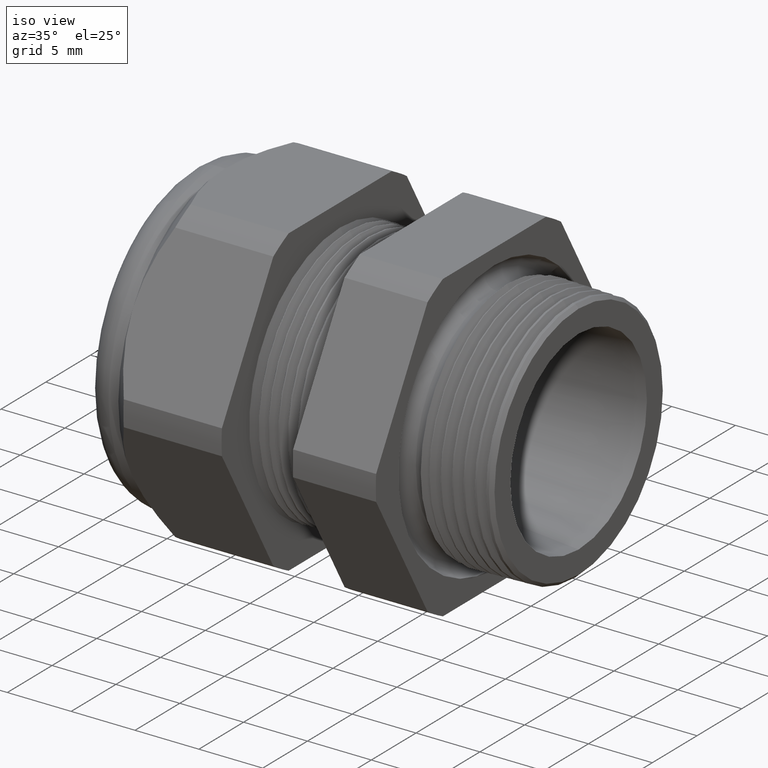
[diagram: clean part render]
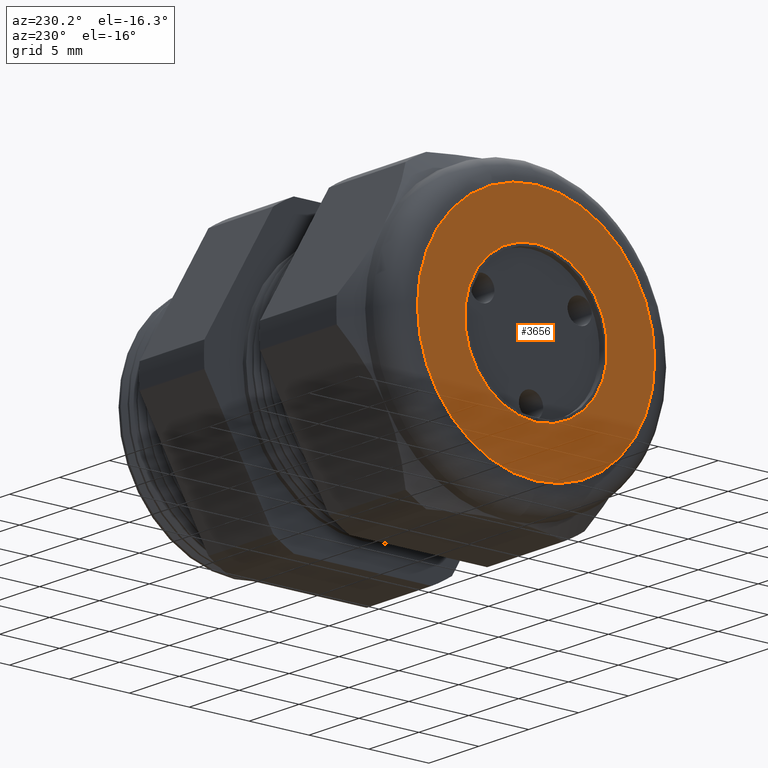
[diagram: tour spotlight — one face highlighted and labeled with its STEP entity id]
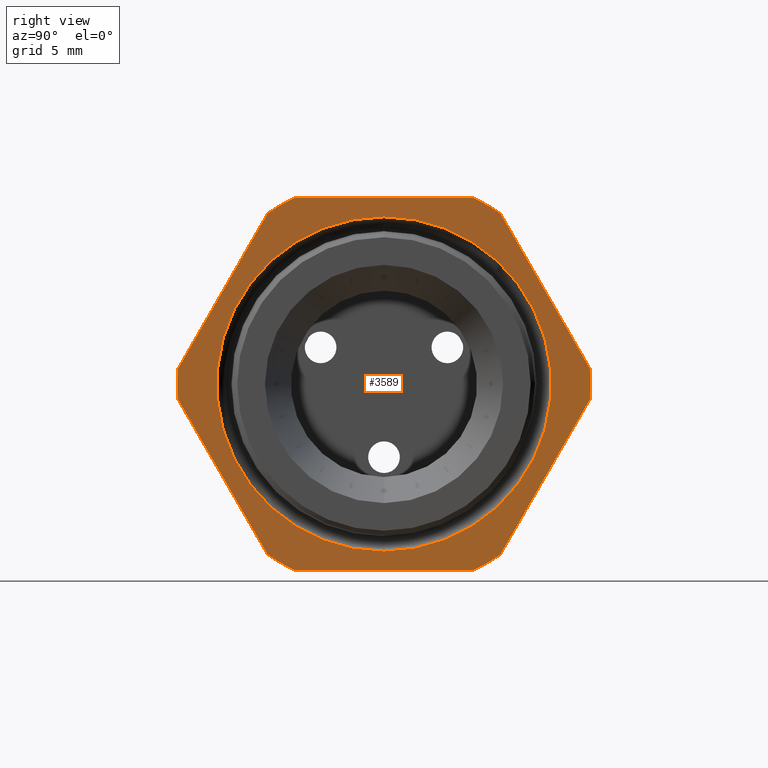
[diagram: tour spotlight — one face highlighted and labeled with its STEP entity id]
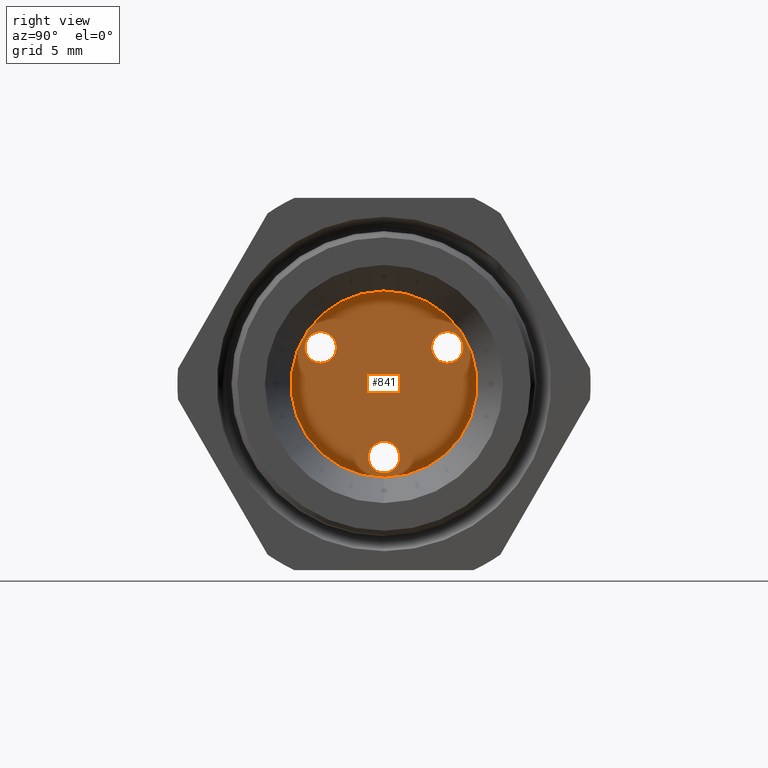
[diagram: tour spotlight — one face highlighted and labeled with its STEP entity id]
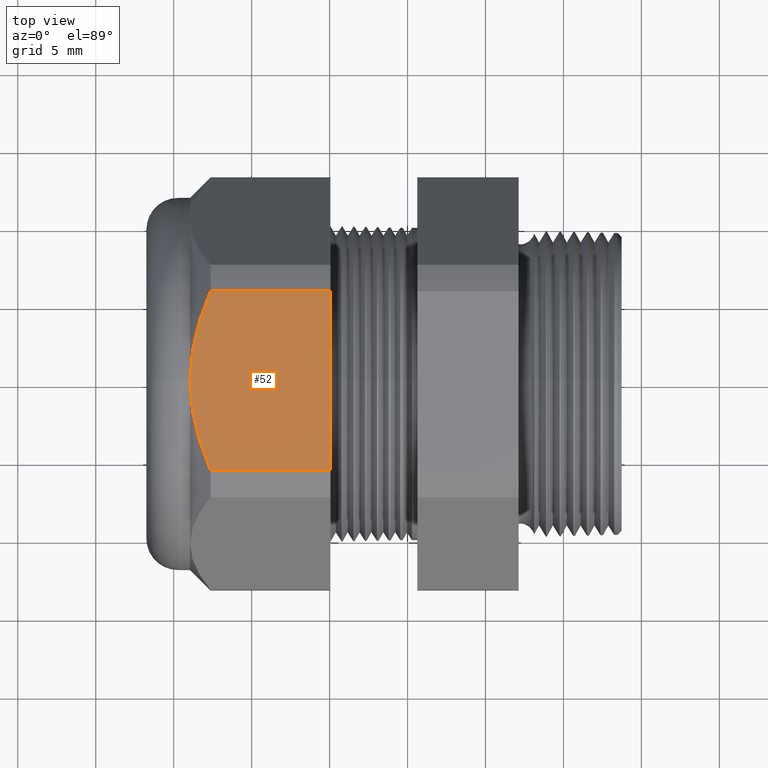
[diagram: tour spotlight — one face highlighted and labeled with its STEP entity id]
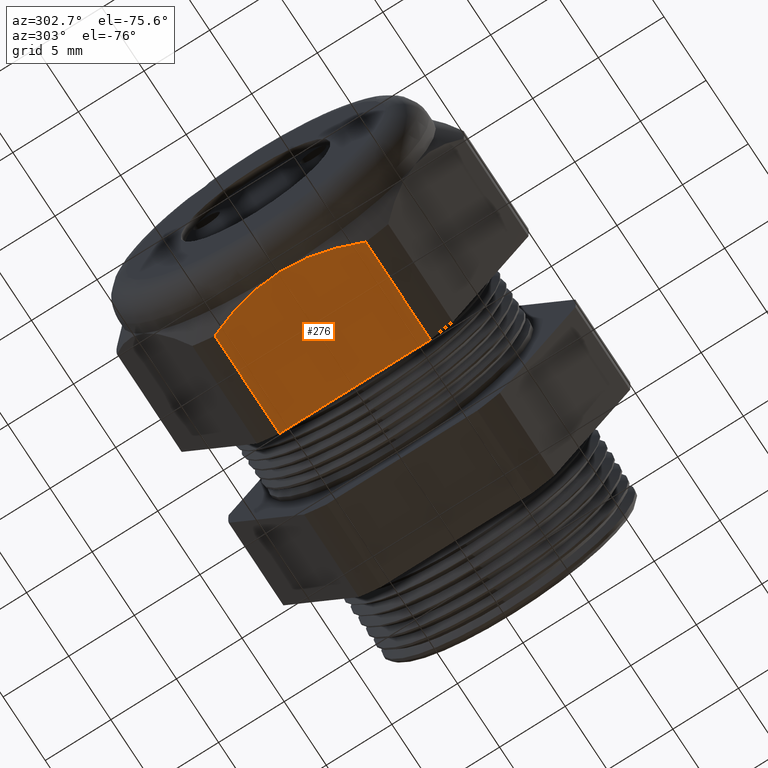
[diagram: tour spotlight — one face highlighted and labeled with its STEP entity id]
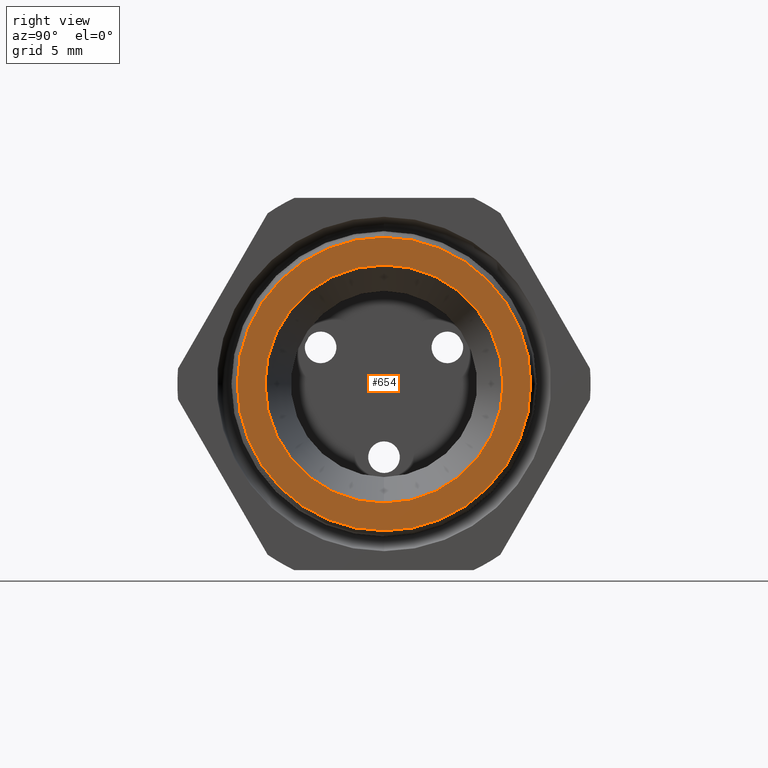
[diagram: tour spotlight — one face highlighted and labeled with its STEP entity id]
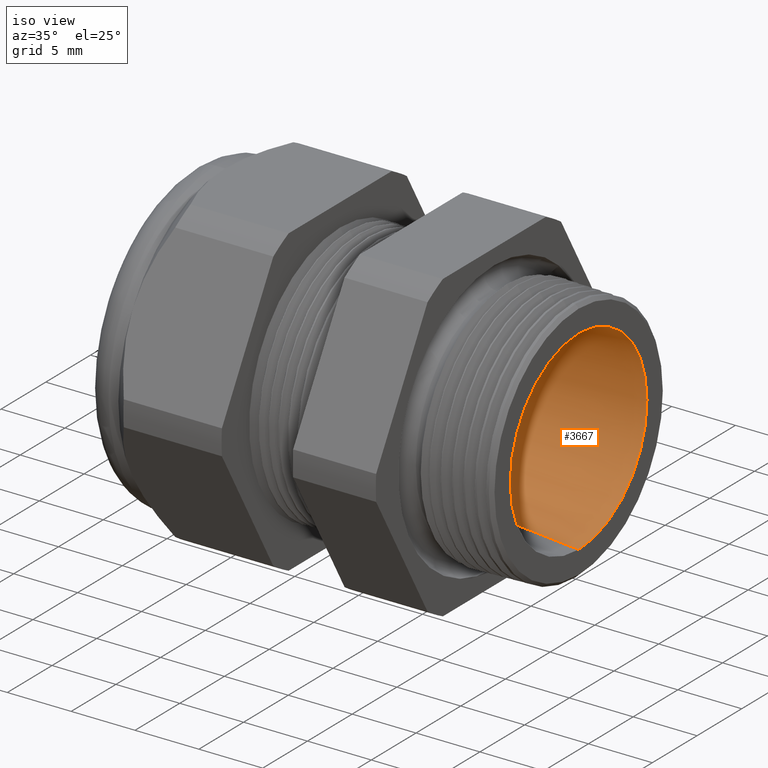
[diagram: tour spotlight — one face highlighted and labeled with its STEP entity id]
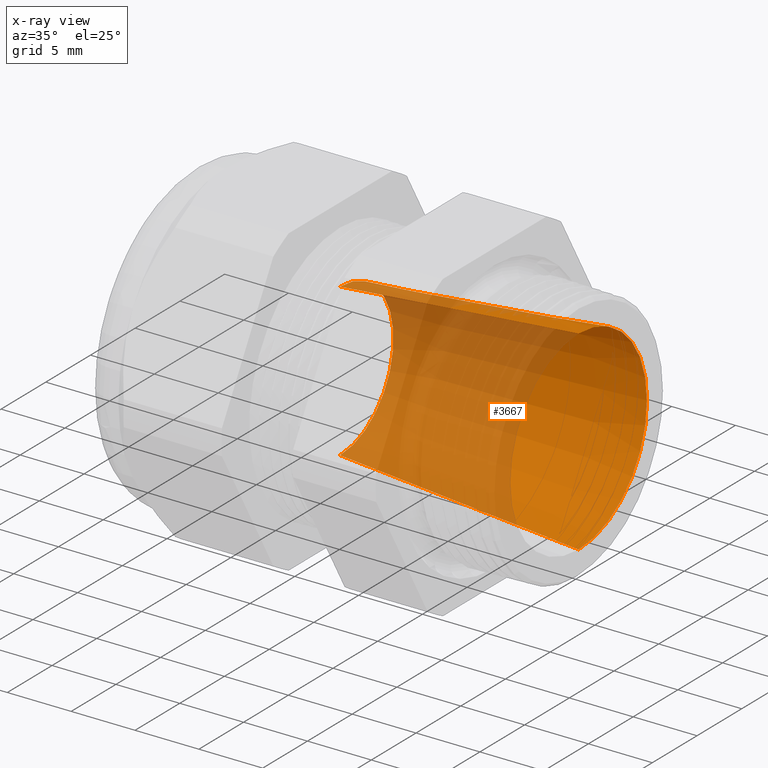
[diagram: x-ray of the same camera — body ghosted, this tour face saturated]
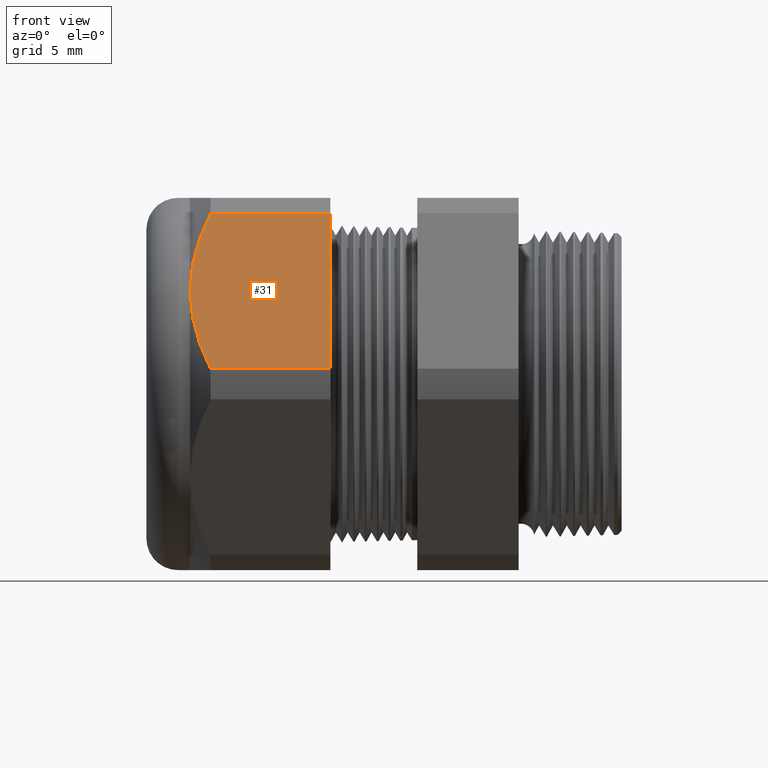
[diagram: tour spotlight — one face highlighted and labeled with its STEP entity id]
A machine part: a face-by-face anatomy tour. The part has 140 B-rep faces; the first image is the clean iso view, then the 8 largest visible faces are spotlighted one at a time (largest first), each with its STEP entity span.

Face 1 — auxiliary view, entity #3656. In plain terms, the highlighted planar face has unit normal (-1, 0, 0).
Definition (entity closure, byte-faithful):
#277 = ORIENTED_EDGE ( 'NONE', *, *, #948, .T. ) ;
#631 = EDGE_CURVE ( 'NONE', #955, #949, #2144, .T. ) ;
#632 = ORIENTED_EDGE ( 'NONE', *, *, #631, .T. ) ;
#633 = EDGE_LOOP ( 'NONE', ( #632, #277 ) ) ;
#640 = EDGE_CURVE ( 'NONE', #799, #874, #2182, .T. ) ;
#641 = ORIENTED_EDGE ( 'NONE', *, *, #640, .T. ) ;
#799 = VERTEX_POINT ( 'NONE', #2495 ) ;
#868 = EDGE_CURVE ( 'NONE', #874, #799, #2605, .T. ) ;
#874 = VERTEX_POINT ( 'NONE', #2663 ) ;
#948 = EDGE_CURVE ( 'NONE', #949, #955, #2786, .T. ) ;
#949 = VERTEX_POINT ( 'NONE', #2777 ) ;
#955 = VERTEX_POINT ( 'NONE', #2767 ) ;
#2130 = CARTESIAN_POINT ( 'NONE',  ( -1.249999999999999800, 0.0000000000000000000, 0.0000000000000000000 ) ) ;
#2140 = DIRECTION ( 'NONE',  ( 0.0000000000000000000, 0.0000000000000000000, -1.000000000000000000 ) ) ;
#2141 = DIRECTION ( 'NONE',  ( 1.000000000000000000, 0.0000000000000000000, 0.0000000000000000000 ) ) ;
#2142 = CARTESIAN_POINT ( 'NONE',  ( -1.249999999999999800, 0.0000000000000000000, 0.0000000000000000000 ) ) ;
#2143 = AXIS2_PLACEMENT_3D ( 'NONE', #2142, #2141, #2140 ) ;
#2144 = CIRCLE ( 'NONE', #2143, 0.2349999999999999600 ) ;
#2179 = DIRECTION ( 'NONE',  ( 0.0000000000000000000, 0.0000000000000000000, 1.000000000000000000 ) ) ;
#2180 = DIRECTION ( 'NONE',  ( -1.000000000000000000, 0.0000000000000000000, 0.0000000000000000000 ) ) ;
#2181 = AXIS2_PLACEMENT_3D ( 'NONE', #2130, #2180, #2179 ) ;
#2182 = CIRCLE ( 'NONE', #2181, 0.3899999999999999600 ) ;
#2495 = CARTESIAN_POINT ( 'NONE',  ( -1.249999999999999800, 5.265981236333617600E-017, -0.3899999999999999600 ) ) ;
#2604 = AXIS2_PLACEMENT_3D ( 'NONE', #2667, #2666, #2665 ) ;
#2605 = CIRCLE ( 'NONE', #2604, 0.3899999999999999600 ) ;
#2663 = CARTESIAN_POINT ( 'NONE',  ( -1.249999999999999800, 0.0000000000000000000, 0.3899999999999999600 ) ) ;
#2665 = DIRECTION ( 'NONE',  ( 0.0000000000000000000, 0.0000000000000000000, 1.000000000000000000 ) ) ;
#2666 = DIRECTION ( 'NONE',  ( -1.000000000000000000, 0.0000000000000000000, 0.0000000000000000000 ) ) ;
#2667 = CARTESIAN_POINT ( 'NONE',  ( -1.249999999999999800, 0.0000000000000000000, 0.0000000000000000000 ) ) ;
#2767 = CARTESIAN_POINT ( 'NONE',  ( -1.249999999999999800, 0.0000000000000000000, -0.2349999999999999600 ) ) ;
#2777 = CARTESIAN_POINT ( 'NONE',  ( -1.249999999999999800, 2.877919977996279200E-017, 0.2349999999999999600 ) ) ;
#2778 = DIRECTION ( 'NONE',  ( 0.0000000000000000000, 0.0000000000000000000, -1.000000000000000000 ) ) ;
#2779 = DIRECTION ( 'NONE',  ( 1.000000000000000000, 0.0000000000000000000, 0.0000000000000000000 ) ) ;
#2780 = CARTESIAN_POINT ( 'NONE',  ( -1.249999999999999800, 0.0000000000000000000, 0.0000000000000000000 ) ) ;
#2781 = AXIS2_PLACEMENT_3D ( 'NONE', #2780, #2779, #2778 ) ;
#2786 = CIRCLE ( 'NONE', #2781, 0.2349999999999999600 ) ;
#3047 = FACE_BOUND ( 'NONE', #633, .T. ) ;
#3048 = FACE_OUTER_BOUND ( 'NONE', #3654, .T. ) ;
#3105 = DIRECTION ( 'NONE',  ( 0.0000000000000000000, 0.0000000000000000000, 1.000000000000000000 ) ) ;
#3106 = DIRECTION ( 'NONE',  ( -1.000000000000000000, 0.0000000000000000000, 0.0000000000000000000 ) ) ;
#3107 = CARTESIAN_POINT ( 'NONE',  ( -1.249999999999999800, 0.4699999999999999700, 0.0000000000000000000 ) ) ;
#3108 = AXIS2_PLACEMENT_3D ( 'NONE', #3107, #3106, #3105 ) ;
#3109 = PLANE ( 'NONE',  #3108 ) ;
#3650 = ORIENTED_EDGE ( 'NONE', *, *, #868, .T. ) ;
#3654 = EDGE_LOOP ( 'NONE', ( #3650, #641 ) ) ;
#3656 = ADVANCED_FACE ( 'NONE', ( #3048, #3047 ), #3109, .T. ) ;

Face 2 — right view, entity #3589. In plain terms, the highlighted planar face has unit normal (1, 0, 0).
Definition (entity closure, byte-faithful):
#508 = VERTEX_POINT ( 'NONE', #1918 ) ;
#567 = EDGE_CURVE ( 'NONE', #508, #568, #2026, .T. ) ;
#568 = VERTEX_POINT ( 'NONE', #2022 ) ;
#624 = VERTEX_POINT ( 'NONE', #2109 ) ;
#1918 = CARTESIAN_POINT ( 'NONE',  ( -0.3100000000000000000, 5.170353013822879300E-017, 0.4221913630462824600 ) ) ;
#2022 = CARTESIAN_POINT ( 'NONE',  ( -0.3100000000000000000, 0.0000000000000000000, -0.4221913630462824600 ) ) ;
#2023 = DIRECTION ( 'NONE',  ( 0.0000000000000000000, 0.0000000000000000000, -1.000000000000000000 ) ) ;
#2024 = DIRECTION ( 'NONE',  ( 1.000000000000000000, 0.0000000000000000000, 0.0000000000000000000 ) ) ;
#2025 = AXIS2_PLACEMENT_3D ( 'NONE', #2030, #2024, #2023 ) ;
#2026 = CIRCLE ( 'NONE', #2025, 0.4221913630462824600 ) ;
#2030 = CARTESIAN_POINT ( 'NONE',  ( -0.3100000000000000000, 0.0000000000000000000, 0.0000000000000000000 ) ) ;
#2109 = CARTESIAN_POINT ( 'NONE',  ( -0.3100000000000000000, 0.5202473208008777700, -0.03890520787129494300 ) ) ;
#2919 = AXIS2_PLACEMENT_3D ( 'NONE', #2982, #2981, #2980 ) ;
#2920 = PLANE ( 'NONE',  #2919 ) ;
#2921 = FACE_OUTER_BOUND ( 'NONE', #3586, .T. ) ;
#2922 = FACE_BOUND ( 'NONE', #3588, .T. ) ;
#2923 = DIRECTION ( 'NONE',  ( 0.0000000000000000000, 0.0000000000000000000, -1.000000000000000000 ) ) ;
#2924 = DIRECTION ( 'NONE',  ( 1.000000000000000000, 0.0000000000000000000, 0.0000000000000000000 ) ) ;
#2925 = CARTESIAN_POINT ( 'NONE',  ( -0.3100000000000000000, 0.0000000000000000000, 0.0000000000000000000 ) ) ;
#2926 = AXIS2_PLACEMENT_3D ( 'NONE', #2925, #2924, #2923 ) ;
#2927 = CIRCLE ( 'NONE', #2926, 0.4221913630462824600 ) ;
#2928 = DIRECTION ( 'NONE',  ( 0.0000000000000000000, 0.4999999999999998300, 0.8660254037844388200 ) ) ;
#2929 = VECTOR ( 'NONE', #2928, 39.37007874015748100 ) ;
#2930 = CARTESIAN_POINT ( 'NONE',  ( -0.3100000000000000000, 0.6420319397786861100, 0.1720319397786861100 ) ) ;
#2931 = LINE ( 'NONE', #2930, #2929 ) ;
#2951 = CARTESIAN_POINT ( 'NONE',  ( -0.3100000000000000000, -0.5202473208008777700, 0.03890520787129464500 ) ) ;
#2956 = DIRECTION ( 'NONE',  ( 0.0000000000000000000, 0.0000000000000000000, -1.000000000000000000 ) ) ;
#2957 = DIRECTION ( 'NONE',  ( 1.000000000000000000, 0.0000000000000000000, 0.0000000000000000000 ) ) ;
#2958 = CARTESIAN_POINT ( 'NONE',  ( -0.3100000000000000000, 0.0000000000000000000, 0.0000000000000000000 ) ) ;
#2959 = AXIS2_PLACEMENT_3D ( 'NONE', #2958, #2957, #2956 ) ;
#2960 = CIRCLE ( 'NONE', #2959, 0.5217000000000000500 ) ;
#2961 = CARTESIAN_POINT ( 'NONE',  ( -0.3100000000000000000, -0.2938165587564947100, 0.4310947921287050500 ) ) ;
#2973 = CARTESIAN_POINT ( 'NONE',  ( -0.3100000000000000000, 0.2938165587564948700, -0.4310947921287048800 ) ) ;
#2980 = DIRECTION ( 'NONE',  ( 0.0000000000000000000, 0.0000000000000000000, -1.000000000000000000 ) ) ;
#2981 = DIRECTION ( 'NONE',  ( 1.000000000000000000, 0.0000000000000000000, 0.0000000000000000000 ) ) ;
#2982 = CARTESIAN_POINT ( 'NONE',  ( -0.3100000000000000000, 0.9399999999999999500, 0.0000000000000000000 ) ) ;
#2983 = CARTESIAN_POINT ( 'NONE',  ( -0.3100000000000000000, -0.2938165587564944800, -0.4310947921287051100 ) ) ;
#2984 = CARTESIAN_POINT ( 'NONE',  ( -0.3100000000000000000, -0.2264307620443832300, -0.4699999999999999700 ) ) ;
#2985 = DIRECTION ( 'NONE',  ( 0.0000000000000000000, 0.0000000000000000000, -1.000000000000000000 ) ) ;
#2986 = DIRECTION ( 'NONE',  ( 1.000000000000000000, 0.0000000000000000000, 0.0000000000000000000 ) ) ;
#2987 = CARTESIAN_POINT ( 'NONE',  ( -0.3100000000000000000, 0.0000000000000000000, 0.0000000000000000000 ) ) ;
#2988 = AXIS2_PLACEMENT_3D ( 'NONE', #2987, #2986, #2985 ) ;
#2989 = CIRCLE ( 'NONE', #2988, 0.5217000000000000500 ) ;
#2990 = DIRECTION ( 'NONE',  ( 0.0000000000000000000, 1.000000000000000000, 0.0000000000000000000 ) ) ;
#2991 = VECTOR ( 'NONE', #2990, 39.37007874015748100 ) ;
#2992 = CARTESIAN_POINT ( 'NONE',  ( -0.3100000000000000000, 0.9399999999999999500, -0.4699999999999999700 ) ) ;
#2993 = LINE ( 'NONE', #2992, #2991 ) ;
#2994 = DIRECTION ( 'NONE',  ( 0.0000000000000000000, 0.0000000000000000000, -1.000000000000000000 ) ) ;
#2995 = DIRECTION ( 'NONE',  ( 1.000000000000000000, 0.0000000000000000000, 0.0000000000000000000 ) ) ;
#2996 = AXIS2_PLACEMENT_3D ( 'NONE', #3002, #2995, #2994 ) ;
#2997 = CIRCLE ( 'NONE', #2996, 0.5217000000000000500 ) ;
#3002 = CARTESIAN_POINT ( 'NONE',  ( -0.3100000000000000000, 0.0000000000000000000, 0.0000000000000000000 ) ) ;
#3005 = DIRECTION ( 'NONE',  ( 0.0000000000000000000, 0.0000000000000000000, -1.000000000000000000 ) ) ;
#3006 = DIRECTION ( 'NONE',  ( 1.000000000000000000, 0.0000000000000000000, 0.0000000000000000000 ) ) ;
#3007 = CARTESIAN_POINT ( 'NONE',  ( -0.3100000000000000000, 0.0000000000000000000, 0.0000000000000000000 ) ) ;
#3008 = AXIS2_PLACEMENT_3D ( 'NONE', #3007, #3006, #3005 ) ;
#3009 = CIRCLE ( 'NONE', #3008, 0.5217000000000000500 ) ;
#3010 = CARTESIAN_POINT ( 'NONE',  ( -0.3100000000000000000, -0.2264307620443835600, 0.4699999999999997500 ) ) ;
#3011 = DIRECTION ( 'NONE',  ( 0.0000000000000000000, 0.4999999999999998900, -0.8660254037844386000 ) ) ;
#3012 = VECTOR ( 'NONE', #3011, 39.37007874015748900 ) ;
#3013 = CARTESIAN_POINT ( 'NONE',  ( -0.3100000000000000000, -0.1720319397786862800, -0.6420319397786862200 ) ) ;
#3014 = LINE ( 'NONE', #3013, #3012 ) ;
#3025 = DIRECTION ( 'NONE',  ( 0.0000000000000000000, -0.4999999999999998300, -0.8660254037844388200 ) ) ;
#3026 = VECTOR ( 'NONE', #3025, 39.37007874015748100 ) ;
#3027 = CARTESIAN_POINT ( 'NONE',  ( -0.3100000000000000000, -0.1720319397786864200, 0.6420319397786858900 ) ) ;
#3028 = LINE ( 'NONE', #3027, #3026 ) ;
#3029 = CARTESIAN_POINT ( 'NONE',  ( -0.3100000000000000000, -0.5202473208008777700, -0.03890520787129508200 ) ) ;
#3030 = CARTESIAN_POINT ( 'NONE',  ( -0.3100000000000000000, 0.5202473208008776600, 0.03890520787129501300 ) ) ;
#3031 = DIRECTION ( 'NONE',  ( 0.0000000000000000000, 0.0000000000000000000, -1.000000000000000000 ) ) ;
#3032 = DIRECTION ( 'NONE',  ( 1.000000000000000000, 0.0000000000000000000, 0.0000000000000000000 ) ) ;
#3033 = CARTESIAN_POINT ( 'NONE',  ( -0.3100000000000000000, 0.0000000000000000000, 0.0000000000000000000 ) ) ;
#3034 = AXIS2_PLACEMENT_3D ( 'NONE', #3033, #3032, #3031 ) ;
#3035 = CIRCLE ( 'NONE', #3034, 0.5217000000000000500 ) ;
#3036 = CARTESIAN_POINT ( 'NONE',  ( -0.3100000000000000000, 0.2264307620443832800, -0.4699999999999999700 ) ) ;
#3037 = CARTESIAN_POINT ( 'NONE',  ( -0.3100000000000000000, 0.2938165587564945900, 0.4310947921287050500 ) ) ;
#3038 = CARTESIAN_POINT ( 'NONE',  ( -0.3100000000000000000, 0.2264307620443832800, 0.4699999999999999200 ) ) ;
#3039 = DIRECTION ( 'NONE',  ( 0.0000000000000000000, -1.000000000000000000, 0.0000000000000000000 ) ) ;
#3040 = VECTOR ( 'NONE', #3039, 39.37007874015748100 ) ;
#3041 = CARTESIAN_POINT ( 'NONE',  ( -0.3100000000000000000, 0.9399999999999999500, 0.4699999999999999200 ) ) ;
#3042 = LINE ( 'NONE', #3041, #3040 ) ;
#3043 = DIRECTION ( 'NONE',  ( 0.0000000000000000000, -0.4999999999999998300, 0.8660254037844386000 ) ) ;
#3044 = VECTOR ( 'NONE', #3043, 39.37007874015748900 ) ;
#3045 = CARTESIAN_POINT ( 'NONE',  ( -0.3100000000000000000, 0.6420319397786861100, -0.1720319397786861700 ) ) ;
#3046 = LINE ( 'NONE', #3045, #3044 ) ;
#3051 = DIRECTION ( 'NONE',  ( 0.0000000000000000000, 0.0000000000000000000, -1.000000000000000000 ) ) ;
#3052 = DIRECTION ( 'NONE',  ( 1.000000000000000000, 0.0000000000000000000, 0.0000000000000000000 ) ) ;
#3053 = CARTESIAN_POINT ( 'NONE',  ( -0.3100000000000000000, 0.0000000000000000000, 0.0000000000000000000 ) ) ;
#3054 = AXIS2_PLACEMENT_3D ( 'NONE', #3053, #3052, #3051 ) ;
#3055 = CIRCLE ( 'NONE', #3054, 0.5217000000000000500 ) ;
#3582 = EDGE_CURVE ( 'NONE', #3594, #624, #2931, .T. ) ;
#3584 = ORIENTED_EDGE ( 'NONE', *, *, #3582, .T. ) ;
#3585 = EDGE_CURVE ( 'NONE', #568, #508, #2927, .T. ) ;
#3586 = EDGE_LOOP ( 'NONE', ( #3584, #3628, #3627, #3604, #3625, #3601, #3630, #3610, #3616, #3617, #3608, #3649 ) ) ;
#3587 = ORIENTED_EDGE ( 'NONE', *, *, #567, .F. ) ;
#3588 = EDGE_LOOP ( 'NONE', ( #3591, #3587 ) ) ;
#3589 = ADVANCED_FACE ( 'NONE', ( #2922, #2921 ), #2920, .T. ) ;
#3591 = ORIENTED_EDGE ( 'NONE', *, *, #3585, .F. ) ;
#3594 = VERTEX_POINT ( 'NONE', #2973 ) ;
#3599 = VERTEX_POINT ( 'NONE', #2961 ) ;
#3600 = EDGE_CURVE ( 'NONE', #3606, #3599, #2960, .T. ) ;
#3601 = ORIENTED_EDGE ( 'NONE', *, *, #3600, .T. ) ;
#3603 = VERTEX_POINT ( 'NONE', #2951 ) ;
#3604 = ORIENTED_EDGE ( 'NONE', *, *, #3612, .T. ) ;
#3605 = EDGE_CURVE ( 'NONE', #3629, #3618, #3014, .T. ) ;
#3606 = VERTEX_POINT ( 'NONE', #3010 ) ;
#3607 = EDGE_CURVE ( 'NONE', #3618, #3615, #3009, .T. ) ;
#3608 = ORIENTED_EDGE ( 'NONE', *, *, #3613, .T. ) ;
#3610 = ORIENTED_EDGE ( 'NONE', *, *, #3614, .T. ) ;
#3612 = EDGE_CURVE ( 'NONE', #3622, #3621, #2997, .T. ) ;
#3613 = EDGE_CURVE ( 'NONE', #3615, #3623, #2993, .T. ) ;
#3614 = EDGE_CURVE ( 'NONE', #3603, #3629, #2989, .T. ) ;
#3615 = VERTEX_POINT ( 'NONE', #2984 ) ;
#3616 = ORIENTED_EDGE ( 'NONE', *, *, #3605, .T. ) ;
#3617 = ORIENTED_EDGE ( 'NONE', *, *, #3607, .T. ) ;
#3618 = VERTEX_POINT ( 'NONE', #2983 ) ;
#3619 = EDGE_CURVE ( 'NONE', #3626, #3622, #3046, .T. ) ;
#3620 = EDGE_CURVE ( 'NONE', #3621, #3606, #3042, .T. ) ;
#3621 = VERTEX_POINT ( 'NONE', #3038 ) ;
#3622 = VERTEX_POINT ( 'NONE', #3037 ) ;
#3623 = VERTEX_POINT ( 'NONE', #3036 ) ;
#3624 = EDGE_CURVE ( 'NONE', #624, #3626, #3035, .T. ) ;
#3625 = ORIENTED_EDGE ( 'NONE', *, *, #3620, .T. ) ;
#3626 = VERTEX_POINT ( 'NONE', #3030 ) ;
#3627 = ORIENTED_EDGE ( 'NONE', *, *, #3619, .T. ) ;
#3628 = ORIENTED_EDGE ( 'NONE', *, *, #3624, .T. ) ;
#3629 = VERTEX_POINT ( 'NONE', #3029 ) ;
#3630 = ORIENTED_EDGE ( 'NONE', *, *, #3632, .T. ) ;
#3632 = EDGE_CURVE ( 'NONE', #3599, #3603, #3028, .T. ) ;
#3649 = ORIENTED_EDGE ( 'NONE', *, *, #3652, .T. ) ;
#3652 = EDGE_CURVE ( 'NONE', #3623, #3594, #3055, .T. ) ;

Face 3 — right view, entity #841. In plain terms, the highlighted planar face has unit normal (-1, 0, 0).
Definition (entity closure, byte-faithful):
#115 = EDGE_LOOP ( 'NONE', ( #155, #156 ) ) ;
#155 = ORIENTED_EDGE ( 'NONE', *, *, #966, .F. ) ;
#156 = ORIENTED_EDGE ( 'NONE', *, *, #845, .F. ) ;
#835 = EDGE_LOOP ( 'NONE', ( #842, #836 ) ) ;
#836 = ORIENTED_EDGE ( 'NONE', *, *, #1025, .T. ) ;
#837 = EDGE_LOOP ( 'NONE', ( #838, #856 ) ) ;
#838 = ORIENTED_EDGE ( 'NONE', *, *, #839, .T. ) ;
#839 = EDGE_CURVE ( 'NONE', #963, #962, #2550, .T. ) ;
#841 = ADVANCED_FACE ( 'NONE', ( #2545, #2603, #2602, #2601 ), #2600, .F. ) ;
#842 = ORIENTED_EDGE ( 'NONE', *, *, #843, .T. ) ;
#843 = EDGE_CURVE ( 'NONE', #1027, #1026, #2595, .T. ) ;
#845 = EDGE_CURVE ( 'NONE', #968, #967, #2590, .T. ) ;
#855 = EDGE_LOOP ( 'NONE', ( #1002, #996 ) ) ;
#856 = ORIENTED_EDGE ( 'NONE', *, *, #961, .T. ) ;
#961 = EDGE_CURVE ( 'NONE', #962, #963, #2824, .T. ) ;
#962 = VERTEX_POINT ( 'NONE', #2820 ) ;
#963 = VERTEX_POINT ( 'NONE', #2819 ) ;
#966 = EDGE_CURVE ( 'NONE', #967, #968, #2814, .T. ) ;
#967 = VERTEX_POINT ( 'NONE', #2809 ) ;
#968 = VERTEX_POINT ( 'NONE', #2808 ) ;
#996 = ORIENTED_EDGE ( 'NONE', *, *, #1013, .T. ) ;
#1002 = ORIENTED_EDGE ( 'NONE', *, *, #1004, .T. ) ;
#1004 = EDGE_CURVE ( 'NONE', #1010, #1018, #2871, .T. ) ;
#1010 = VERTEX_POINT ( 'NONE', #2856 ) ;
#1013 = EDGE_CURVE ( 'NONE', #1018, #1010, #2918, .T. ) ;
#1018 = VERTEX_POINT ( 'NONE', #2903 ) ;
#1025 = EDGE_CURVE ( 'NONE', #1026, #1027, #2891, .T. ) ;
#1026 = VERTEX_POINT ( 'NONE', #2886 ) ;
#1027 = VERTEX_POINT ( 'NONE', #2950 ) ;
#2545 = FACE_BOUND ( 'NONE', #835, .T. ) ;
#2546 = DIRECTION ( 'NONE',  ( 0.0000000000000000000, 0.8660254037844363800, -0.5000000000000041100 ) ) ;
#2547 = DIRECTION ( 'NONE',  ( -1.000000000000000000, 0.0000000000000000000, 0.0000000000000000000 ) ) ;
#2548 = CARTESIAN_POINT ( 'NONE',  ( -0.9999999999999996700, -0.1600761356355151800, 0.09242000000000072400 ) ) ;
#2549 = AXIS2_PLACEMENT_3D ( 'NONE', #2548, #2547, #2546 ) ;
#2550 = CIRCLE ( 'NONE', #2549, 0.04000000000000000100 ) ;
#2586 = DIRECTION ( 'NONE',  ( 0.0000000000000000000, 0.0000000000000000000, 1.000000000000000000 ) ) ;
#2587 = DIRECTION ( 'NONE',  ( -1.000000000000000000, 0.0000000000000000000, 0.0000000000000000000 ) ) ;
#2588 = CARTESIAN_POINT ( 'NONE',  ( -0.9999999999999996700, 0.0000000000000000000, 0.0000000000000000000 ) ) ;
#2589 = AXIS2_PLACEMENT_3D ( 'NONE', #2588, #2587, #2586 ) ;
#2590 = CIRCLE ( 'NONE', #2589, 0.2349999999999999600 ) ;
#2591 = DIRECTION ( 'NONE',  ( 0.0000000000000000000, -0.8660254037844432600, -0.4999999999999919500 ) ) ;
#2592 = DIRECTION ( 'NONE',  ( -1.000000000000000000, 0.0000000000000000000, 0.0000000000000000000 ) ) ;
#2593 = CARTESIAN_POINT ( 'NONE',  ( -0.9999999999999996700, 0.1600761356355164500, 0.09241999999999848900 ) ) ;
#2594 = AXIS2_PLACEMENT_3D ( 'NONE', #2593, #2592, #2591 ) ;
#2595 = CIRCLE ( 'NONE', #2594, 0.03999999999999999400 ) ;
#2596 = DIRECTION ( 'NONE',  ( 0.0000000000000000000, 0.0000000000000000000, 1.000000000000000000 ) ) ;
#2597 = DIRECTION ( 'NONE',  ( -1.000000000000000000, 0.0000000000000000000, 0.0000000000000000000 ) ) ;
#2598 = CARTESIAN_POINT ( 'NONE',  ( -0.9999999999999996700, 0.0000000000000000000, 0.0000000000000000000 ) ) ;
#2599 = AXIS2_PLACEMENT_3D ( 'NONE', #2598, #2597, #2596 ) ;
#2600 = PLANE ( 'NONE',  #2599 ) ;
#2601 = FACE_OUTER_BOUND ( 'NONE', #115, .T. ) ;
#2602 = FACE_BOUND ( 'NONE', #855, .T. ) ;
#2603 = FACE_BOUND ( 'NONE', #837, .T. ) ;
#2760 = CARTESIAN_POINT ( 'NONE',  ( -0.9999999999999996700, -0.1600761356355151800, 0.09242000000000072400 ) ) ;
#2808 = CARTESIAN_POINT ( 'NONE',  ( -0.9999999999999996700, 2.877919977996279200E-017, -0.2349999999999999600 ) ) ;
#2809 = CARTESIAN_POINT ( 'NONE',  ( -0.9999999999999996700, 0.0000000000000000000, 0.2349999999999999600 ) ) ;
#2810 = DIRECTION ( 'NONE',  ( 0.0000000000000000000, 0.0000000000000000000, 1.000000000000000000 ) ) ;
#2811 = DIRECTION ( 'NONE',  ( -1.000000000000000000, 0.0000000000000000000, 0.0000000000000000000 ) ) ;
#2812 = CARTESIAN_POINT ( 'NONE',  ( -0.9999999999999996700, 0.0000000000000000000, 0.0000000000000000000 ) ) ;
#2813 = AXIS2_PLACEMENT_3D ( 'NONE', #2812, #2811, #2810 ) ;
#2814 = CIRCLE ( 'NONE', #2813, 0.2349999999999999600 ) ;
#2819 = CARTESIAN_POINT ( 'NONE',  ( -0.9999999999999996700, -0.1600761356355151800, 0.1324200000000007000 ) ) ;
#2820 = CARTESIAN_POINT ( 'NONE',  ( -0.9999999999999996700, -0.1600761356355151800, 0.05242000000000073000 ) ) ;
#2821 = DIRECTION ( 'NONE',  ( 0.0000000000000000000, 0.8660254037844363800, -0.5000000000000041100 ) ) ;
#2822 = DIRECTION ( 'NONE',  ( -1.000000000000000000, 0.0000000000000000000, 0.0000000000000000000 ) ) ;
#2823 = AXIS2_PLACEMENT_3D ( 'NONE', #2760, #2822, #2821 ) ;
#2824 = CIRCLE ( 'NONE', #2823, 0.04000000000000000100 ) ;
#2856 = CARTESIAN_POINT ( 'NONE',  ( -0.9999999999999996700, 0.0000000000000000000, -0.1448399999999999700 ) ) ;
#2867 = DIRECTION ( 'NONE',  ( 0.0000000000000000000, 0.0000000000000000000, 1.000000000000000000 ) ) ;
#2868 = DIRECTION ( 'NONE',  ( -1.000000000000000000, 0.0000000000000000000, 0.0000000000000000000 ) ) ;
#2869 = CARTESIAN_POINT ( 'NONE',  ( -0.9999999999999996700, 0.0000000000000000000, -0.1848399999999999500 ) ) ;
#2870 = AXIS2_PLACEMENT_3D ( 'NONE', #2869, #2868, #2867 ) ;
#2871 = CIRCLE ( 'NONE', #2870, 0.03999999999999998000 ) ;
#2886 = CARTESIAN_POINT ( 'NONE',  ( -0.9999999999999996700, 0.1600761356355164500, 0.05241999999999849600 ) ) ;
#2887 = DIRECTION ( 'NONE',  ( 0.0000000000000000000, -0.8660254037844432600, -0.4999999999999919500 ) ) ;
#2888 = DIRECTION ( 'NONE',  ( -1.000000000000000000, 0.0000000000000000000, 0.0000000000000000000 ) ) ;
#2889 = CARTESIAN_POINT ( 'NONE',  ( -0.9999999999999996700, 0.1600761356355164500, 0.09241999999999848900 ) ) ;
#2890 = AXIS2_PLACEMENT_3D ( 'NONE', #2889, #2888, #2887 ) ;
#2891 = CIRCLE ( 'NONE', #2890, 0.03999999999999999400 ) ;
#2903 = CARTESIAN_POINT ( 'NONE',  ( -0.9999999999999996700, 4.898587196589412000E-018, -0.2248399999999999300 ) ) ;
#2914 = DIRECTION ( 'NONE',  ( 0.0000000000000000000, 0.0000000000000000000, 1.000000000000000000 ) ) ;
#2915 = DIRECTION ( 'NONE',  ( -1.000000000000000000, 0.0000000000000000000, 0.0000000000000000000 ) ) ;
#2916 = CARTESIAN_POINT ( 'NONE',  ( -0.9999999999999996700, 0.0000000000000000000, -0.1848399999999999500 ) ) ;
#2917 = AXIS2_PLACEMENT_3D ( 'NONE', #2916, #2915, #2914 ) ;
#2918 = CIRCLE ( 'NONE', #2917, 0.03999999999999998000 ) ;
#2950 = CARTESIAN_POINT ( 'NONE',  ( -0.9999999999999996700, 0.1600761356355164500, 0.1324199999999984800 ) ) ;

Face 4 — top view, entity #52. In plain terms, the highlighted planar face has unit normal (0, 0, 1).
Definition (entity closure, byte-faithful):
#3 = EDGE_CURVE ( 'NONE', #7, #4, #1068, .T. ) ;
#4 = VERTEX_POINT ( 'NONE', #1064 ) ;
#7 = VERTEX_POINT ( 'NONE', #1058 ) ;
#52 = ADVANCED_FACE ( 'NONE', ( #1129 ), #1189, .T. ) ;
#53 = EDGE_LOOP ( 'NONE', ( #75, #70, #64, #58, #77 ) ) ;
#54 = EDGE_CURVE ( 'NONE', #80, #888, #1184, .T. ) ;
#58 = ORIENTED_EDGE ( 'NONE', *, *, #3, .F. ) ;
#64 = ORIENTED_EDGE ( 'NONE', *, *, #71, .T. ) ;
#65 = VERTEX_POINT ( 'NONE', #1157 ) ;
#70 = ORIENTED_EDGE ( 'NONE', *, *, #54, .T. ) ;
#71 = EDGE_CURVE ( 'NONE', #888, #4, #1213, .T. ) ;
#75 = ORIENTED_EDGE ( 'NONE', *, *, #79, .T. ) ;
#77 = ORIENTED_EDGE ( 'NONE', *, *, #81, .F. ) ;
#79 = EDGE_CURVE ( 'NONE', #65, #80, #1212, .T. ) ;
#80 = VERTEX_POINT ( 'NONE', #1200 ) ;
#81 = EDGE_CURVE ( 'NONE', #65, #7, #1199, .T. ) ;
#888 = VERTEX_POINT ( 'NONE', #2641 ) ;
#1058 = CARTESIAN_POINT ( 'NONE',  ( -0.7854330708661413400, -0.2264307620443835600, 0.4699999999999997500 ) ) ;
#1064 = CARTESIAN_POINT ( 'NONE',  ( -1.088063779527558500, -0.2264307620443835000, 0.4699999999999999200 ) ) ;
#1065 = DIRECTION ( 'NONE',  ( -1.000000000000000000, 0.0000000000000000000, 0.0000000000000000000 ) ) ;
#1066 = VECTOR ( 'NONE', #1065, 39.37007874015748100 ) ;
#1067 = CARTESIAN_POINT ( 'NONE',  ( -0.05000000000000001000, -0.2264307620443835600, 0.4699999999999997500 ) ) ;
#1068 = LINE ( 'NONE', #1067, #1066 ) ;
#1129 = FACE_OUTER_BOUND ( 'NONE', #53, .T. ) ;
#1157 = CARTESIAN_POINT ( 'NONE',  ( -0.7854330708661413400, 0.2264307620443832800, 0.4699999999999999200 ) ) ;
#1171 = CARTESIAN_POINT ( 'NONE',  ( -1.139763779527558600, 0.0000000000000000000, 0.4699999999999999700 ) ) ;
#1172 = CARTESIAN_POINT ( 'NONE',  ( -1.139763779527558600, 0.01964242875915811100, 0.4699999999999999200 ) ) ;
#1173 = CARTESIAN_POINT ( 'NONE',  ( -1.138517019735540500, 0.03924163778662349800, 0.4699999999999999700 ) ) ;
#1174 = CARTESIAN_POINT ( 'NONE',  ( -1.133749478914867900, 0.07782038235249975900, 0.4699999999999997500 ) ) ;
#1175 = CARTESIAN_POINT ( 'NONE',  ( -1.130231001418866300, 0.09688970369981485300, 0.4699999999999999700 ) ) ;
#1176 = CARTESIAN_POINT ( 'NONE',  ( -1.121202062721104300, 0.1346420459264779700, 0.4699999999999999200 ) ) ;
#1177 = CARTESIAN_POINT ( 'NONE',  ( -1.115692781244512800, 0.1533252955870069400, 0.4700000000000000300 ) ) ;
#1178 = CARTESIAN_POINT ( 'NONE',  ( -1.102974602953725300, 0.1903621927138393300, 0.4699999999999999200 ) ) ;
#1179 = CARTESIAN_POINT ( 'NONE',  ( -1.095800509309332400, 0.2086052162099338000, 0.4699999999999998600 ) ) ;
#1180 = CARTESIAN_POINT ( 'NONE',  ( -1.088063779527558500, 0.2264307620443833400, 0.4700000000000000300 ) ) ;
#1184 = B_SPLINE_CURVE_WITH_KNOTS ( 'NONE', 3,
 ( #1180, #1179, #1178, #1177, #1176, #1175, #1174, #1173, #1172, #1171 ),
 .UNSPECIFIED., .F., .F.,
 ( 4, 2, 2, 2, 4 ),
 ( 0.009140358755258091600, 0.01061001397932214400, 0.01207966920338619500, 0.01354932442745024500, 0.01501897965151429600 ),
 .UNSPECIFIED. ) ;
#1185 = DIRECTION ( 'NONE',  ( 1.000000000000000000, 0.0000000000000000000, 0.0000000000000000000 ) ) ;
#1186 = DIRECTION ( 'NONE',  ( 0.0000000000000000000, 0.0000000000000000000, 1.000000000000000000 ) ) ;
#1187 = CARTESIAN_POINT ( 'NONE',  ( -0.05000000000000001000, -0.2264307620443832800, 0.4699999999999999200 ) ) ;
#1188 = AXIS2_PLACEMENT_3D ( 'NONE', #1187, #1186, #1185 ) ;
#1189 = PLANE ( 'NONE',  #1188 ) ;
#1196 = DIRECTION ( 'NONE',  ( 0.0000000000000000000, -1.000000000000000000, 0.0000000000000000000 ) ) ;
#1197 = VECTOR ( 'NONE', #1196, 39.37007874015748100 ) ;
#1198 = CARTESIAN_POINT ( 'NONE',  ( -0.7854330708661413400, 0.4000000000000000200, 0.4699999999999999200 ) ) ;
#1199 = LINE ( 'NONE', #1198, #1197 ) ;
#1200 = CARTESIAN_POINT ( 'NONE',  ( -1.088063779527558500, 0.2264307620443833400, 0.4700000000000000300 ) ) ;
#1201 = DIRECTION ( 'NONE',  ( -1.000000000000000000, 0.0000000000000000000, 0.0000000000000000000 ) ) ;
#1202 = VECTOR ( 'NONE', #1201, 39.37007874015748100 ) ;
#1203 = CARTESIAN_POINT ( 'NONE',  ( -1.088063779527558500, -0.2264307620443835000, 0.4699999999999999200 ) ) ;
#1204 = CARTESIAN_POINT ( 'NONE',  ( -1.095800659726854800, -0.2086048696456209200, 0.4699999999999997000 ) ) ;
#1205 = CARTESIAN_POINT ( 'NONE',  ( -1.102949366997027600, -0.1904348960138967400, 0.4699999999999999200 ) ) ;
#1206 = CARTESIAN_POINT ( 'NONE',  ( -1.115712352585575700, -0.1532690879941744900, 0.4699999999999999200 ) ) ;
#1207 = CARTESIAN_POINT ( 'NONE',  ( -1.121231388637372400, -0.1345390626635396500, 0.4699999999999999200 ) ) ;
#1208 = CARTESIAN_POINT ( 'NONE',  ( -1.134778598172672600, -0.07783554612607099200, 0.4699999999999999200 ) ) ;
#1209 = CARTESIAN_POINT ( 'NONE',  ( -1.139763779527558600, -0.03934296915062188800, 0.4699999999999999200 ) ) ;
#1210 = CARTESIAN_POINT ( 'NONE',  ( -1.139763779527558600, 0.0000000000000000000, 0.4699999999999999700 ) ) ;
#1211 = CARTESIAN_POINT ( 'NONE',  ( -0.05000000000000001000, 0.2264307620443832800, 0.4699999999999999200 ) ) ;
#1212 = LINE ( 'NONE', #1211, #1202 ) ;
#1213 = B_SPLINE_CURVE_WITH_KNOTS ( 'NONE', 3,
 ( #1210, #1209, #1208, #1207, #1206, #1205, #1204, #1203 ),
 .UNSPECIFIED., .F., .F.,
 ( 4, 2, 2, 4 ),
 ( 0.01501897965151429600, 0.01796263803772295600, 0.01943446723082728500, 0.02090629642393161700 ),
 .UNSPECIFIED. ) ;
#2641 = CARTESIAN_POINT ( 'NONE',  ( -1.139763779527558600, 0.0000000000000000000, 0.4699999999999999700 ) ) ;

Face 5 — auxiliary view, entity #276. In plain terms, the highlighted planar face has unit normal (0, 0, -1).
Definition (entity closure, byte-faithful):
#89 = EDGE_CURVE ( 'NONE', #281, #3917, #1246, .T. ) ;
#93 = ORIENTED_EDGE ( 'NONE', *, *, #3927, .F. ) ;
#94 = ORIENTED_EDGE ( 'NONE', *, *, #89, .F. ) ;
#100 = EDGE_CURVE ( 'NONE', #899, #3922, #1232, .T. ) ;
#276 = ADVANCED_FACE ( 'NONE', ( #1583 ), #1582, .T. ) ;
#278 = EDGE_LOOP ( 'NONE', ( #279, #644, #645, #93, #94 ) ) ;
#279 = ORIENTED_EDGE ( 'NONE', *, *, #634, .T. ) ;
#281 = VERTEX_POINT ( 'NONE', #1572 ) ;
#634 = EDGE_CURVE ( 'NONE', #281, #643, #2139, .T. ) ;
#643 = VERTEX_POINT ( 'NONE', #2178 ) ;
#644 = ORIENTED_EDGE ( 'NONE', *, *, #646, .T. ) ;
#645 = ORIENTED_EDGE ( 'NONE', *, *, #100, .T. ) ;
#646 = EDGE_CURVE ( 'NONE', #643, #899, #2177, .T. ) ;
#899 = VERTEX_POINT ( 'NONE', #2688 ) ;
#1219 = CARTESIAN_POINT ( 'NONE',  ( -1.115692781244512100, 0.1533252955870068600, -0.4699999999999999700 ) ) ;
#1220 = CARTESIAN_POINT ( 'NONE',  ( -1.121202062721104600, 0.1346420459264780200, -0.4700000000000000800 ) ) ;
#1221 = CARTESIAN_POINT ( 'NONE',  ( -1.130231001418866800, 0.09688970369981492200, -0.4700000000000000300 ) ) ;
#1222 = CARTESIAN_POINT ( 'NONE',  ( -1.133749478914868100, 0.07782038235249988400, -0.4700000000000000300 ) ) ;
#1223 = CARTESIAN_POINT ( 'NONE',  ( -1.138517019735540300, 0.03924163778662362300, -0.4699999999999999700 ) ) ;
#1224 = CARTESIAN_POINT ( 'NONE',  ( -1.139763779527558600, 0.01964242875915822900, -0.4700000000000000300 ) ) ;
#1225 = CARTESIAN_POINT ( 'NONE',  ( -1.139763779527558600, 0.0000000000000000000, -0.4699999999999999700 ) ) ;
#1232 = B_SPLINE_CURVE_WITH_KNOTS ( 'NONE', 3,
 ( #1225, #1224, #1223, #1222, #1221, #1220, #1219, #3668, #3743, #1284 ),
 .UNSPECIFIED., .F., .F.,
 ( 4, 2, 2, 2, 4 ),
 ( 0.01398828679202870900, 0.01545854684696779100, 0.01692880690190687300, 0.01839906695684595900, 0.01986932701178504100 ),
 .UNSPECIFIED. ) ;
#1243 = DIRECTION ( 'NONE',  ( 0.0000000000000000000, 1.000000000000000000, 0.0000000000000000000 ) ) ;
#1244 = VECTOR ( 'NONE', #1243, 39.37007874015748100 ) ;
#1245 = CARTESIAN_POINT ( 'NONE',  ( -0.7854330708661413400, 0.4000000000000000200, -0.4699999999999999700 ) ) ;
#1246 = LINE ( 'NONE', #1245, #1244 ) ;
#1284 = CARTESIAN_POINT ( 'NONE',  ( -1.088063779527558500, 0.2264307620443832800, -0.4699999999999999700 ) ) ;
#1572 = CARTESIAN_POINT ( 'NONE',  ( -0.7854330708661413400, -0.2264307620443832300, -0.4699999999999999700 ) ) ;
#1578 = DIRECTION ( 'NONE',  ( -1.000000000000000000, 0.0000000000000000000, 0.0000000000000000000 ) ) ;
#1579 = DIRECTION ( 'NONE',  ( 0.0000000000000000000, 0.0000000000000000000, -1.000000000000000000 ) ) ;
#1580 = CARTESIAN_POINT ( 'NONE',  ( -0.05000000000000001000, 0.2264307620443832300, -0.4699999999999999700 ) ) ;
#1581 = AXIS2_PLACEMENT_3D ( 'NONE', #1580, #1579, #1578 ) ;
#1582 = PLANE ( 'NONE',  #1581 ) ;
#1583 = FACE_OUTER_BOUND ( 'NONE', #278, .T. ) ;
#2136 = DIRECTION ( 'NONE',  ( -1.000000000000000000, 0.0000000000000000000, 0.0000000000000000000 ) ) ;
#2137 = VECTOR ( 'NONE', #2136, 39.37007874015748100 ) ;
#2138 = CARTESIAN_POINT ( 'NONE',  ( -0.05000000000000001000, -0.2264307620443832300, -0.4699999999999999700 ) ) ;
#2139 = LINE ( 'NONE', #2138, #2137 ) ;
#2167 = CARTESIAN_POINT ( 'NONE',  ( -1.139763779527558600, 0.0000000000000000000, -0.4699999999999999700 ) ) ;
#2168 = CARTESIAN_POINT ( 'NONE',  ( -1.139763779527558100, -0.03934296915062172200, -0.4699999999999999200 ) ) ;
#2169 = CARTESIAN_POINT ( 'NONE',  ( -1.134778598172672100, -0.07783554612607075700, -0.4699999999999997500 ) ) ;
#2170 = CARTESIAN_POINT ( 'NONE',  ( -1.121231388637372800, -0.1345390626635394300, -0.4699999999999999700 ) ) ;
#2171 = CARTESIAN_POINT ( 'NONE',  ( -1.115712352585575200, -0.1532690879941741600, -0.4699999999999998600 ) ) ;
#2172 = CARTESIAN_POINT ( 'NONE',  ( -1.102949366997027600, -0.1904348960138965200, -0.4699999999999999700 ) ) ;
#2173 = CARTESIAN_POINT ( 'NONE',  ( -1.095800659726854600, -0.2086048696456207500, -0.4699999999999999200 ) ) ;
#2174 = CARTESIAN_POINT ( 'NONE',  ( -1.088063779527558700, -0.2264307620443832500, -0.4699999999999999700 ) ) ;
#2177 = B_SPLINE_CURVE_WITH_KNOTS ( 'NONE', 3,
 ( #2174, #2173, #2172, #2171, #2170, #2169, #2168, #2167 ),
 .UNSPECIFIED., .F., .F.,
 ( 4, 2, 2, 4 ),
 ( 0.008098547117357348900, 0.009570982036025188500, 0.01104341695469302800, 0.01398828679202870900 ),
 .UNSPECIFIED. ) ;
#2178 = CARTESIAN_POINT ( 'NONE',  ( -1.088063779527558700, -0.2264307620443832500, -0.4699999999999999700 ) ) ;
#2688 = CARTESIAN_POINT ( 'NONE',  ( -1.139763779527558600, 0.0000000000000000000, -0.4699999999999999700 ) ) ;
#3467 = DIRECTION ( 'NONE',  ( -1.000000000000000000, 0.0000000000000000000, 0.0000000000000000000 ) ) ;
#3468 = VECTOR ( 'NONE', #3467, 39.37007874015748100 ) ;
#3469 = CARTESIAN_POINT ( 'NONE',  ( -0.05000000000000001000, 0.2264307620443832800, -0.4699999999999999700 ) ) ;
#3470 = LINE ( 'NONE', #3469, #3468 ) ;
#3477 = CARTESIAN_POINT ( 'NONE',  ( -1.088063779527558500, 0.2264307620443832800, -0.4699999999999999700 ) ) ;
#3489 = CARTESIAN_POINT ( 'NONE',  ( -0.7854330708661413400, 0.2264307620443832800, -0.4699999999999999700 ) ) ;
#3668 = CARTESIAN_POINT ( 'NONE',  ( -1.102974602953725300, 0.1903621927138391400, -0.4699999999999999700 ) ) ;
#3743 = CARTESIAN_POINT ( 'NONE',  ( -1.095800509309331900, 0.2086052162099337500, -0.4699999999999997500 ) ) ;
#3917 = VERTEX_POINT ( 'NONE', #3489 ) ;
#3922 = VERTEX_POINT ( 'NONE', #3477 ) ;
#3927 = EDGE_CURVE ( 'NONE', #3917, #3922, #3470, .T. ) ;

Face 6 — right view, entity #654. In plain terms, the highlighted planar face has unit normal (1, 0, 0).
Definition (entity closure, byte-faithful):
#642 = EDGE_LOOP ( 'NONE', ( #3711, #3713 ) ) ;
#648 = ORIENTED_EDGE ( 'NONE', *, *, #765, .T. ) ;
#649 = EDGE_CURVE ( 'NONE', #764, #759, #2175, .T. ) ;
#650 = ORIENTED_EDGE ( 'NONE', *, *, #649, .T. ) ;
#653 = EDGE_LOOP ( 'NONE', ( #650, #648 ) ) ;
#654 = ADVANCED_FACE ( 'NONE', ( #2219, #2218 ), #2217, .T. ) ;
#655 = EDGE_CURVE ( 'NONE', #875, #952, #2212, .T. ) ;
#759 = VERTEX_POINT ( 'NONE', #2381 ) ;
#764 = VERTEX_POINT ( 'NONE', #2439 ) ;
#765 = EDGE_CURVE ( 'NONE', #759, #764, #2438, .T. ) ;
#875 = VERTEX_POINT ( 'NONE', #2662 ) ;
#937 = EDGE_CURVE ( 'NONE', #952, #875, #2744, .T. ) ;
#952 = VERTEX_POINT ( 'NONE', #2772 ) ;
#2163 = DIRECTION ( 'NONE',  ( 0.0000000000000000000, 0.0000000000000000000, -1.000000000000000000 ) ) ;
#2164 = DIRECTION ( 'NONE',  ( 1.000000000000000000, 0.0000000000000000000, 0.0000000000000000000 ) ) ;
#2165 = CARTESIAN_POINT ( 'NONE',  ( -0.04999999999999998200, 0.0000000000000000000, 0.0000000000000000000 ) ) ;
#2166 = AXIS2_PLACEMENT_3D ( 'NONE', #2165, #2164, #2163 ) ;
#2175 = CIRCLE ( 'NONE', #2166, 0.3704695865584892200 ) ;
#2208 = DIRECTION ( 'NONE',  ( 0.0000000000000000000, 0.0000000000000000000, -1.000000000000000000 ) ) ;
#2209 = DIRECTION ( 'NONE',  ( 1.000000000000000000, 0.0000000000000000000, 0.0000000000000000000 ) ) ;
#2210 = CARTESIAN_POINT ( 'NONE',  ( -0.04999999999999998200, 0.0000000000000000000, 0.0000000000000000000 ) ) ;
#2211 = AXIS2_PLACEMENT_3D ( 'NONE', #2210, #2209, #2208 ) ;
#2212 = CIRCLE ( 'NONE', #2211, 0.3007420072869181300 ) ;
#2213 = DIRECTION ( 'NONE',  ( 0.0000000000000000000, 0.0000000000000000000, -1.000000000000000000 ) ) ;
#2214 = DIRECTION ( 'NONE',  ( 1.000000000000000000, 0.0000000000000000000, 0.0000000000000000000 ) ) ;
#2215 = CARTESIAN_POINT ( 'NONE',  ( -0.04999999999999998200, 0.3007420072869181300, 0.0000000000000000000 ) ) ;
#2216 = AXIS2_PLACEMENT_3D ( 'NONE', #2215, #2214, #2213 ) ;
#2217 = PLANE ( 'NONE',  #2216 ) ;
#2218 = FACE_BOUND ( 'NONE', #642, .T. ) ;
#2219 = FACE_OUTER_BOUND ( 'NONE', #653, .T. ) ;
#2381 = CARTESIAN_POINT ( 'NONE',  ( -0.04999999999999998200, 4.601447245223632400E-017, -0.3704695865584892200 ) ) ;
#2434 = DIRECTION ( 'NONE',  ( 0.0000000000000000000, 0.0000000000000000000, -1.000000000000000000 ) ) ;
#2435 = DIRECTION ( 'NONE',  ( 1.000000000000000000, 0.0000000000000000000, 0.0000000000000000000 ) ) ;
#2436 = CARTESIAN_POINT ( 'NONE',  ( -0.04999999999999998200, 0.0000000000000000000, 0.0000000000000000000 ) ) ;
#2437 = AXIS2_PLACEMENT_3D ( 'NONE', #2436, #2435, #2434 ) ;
#2438 = CIRCLE ( 'NONE', #2437, 0.3704695865584892200 ) ;
#2439 = CARTESIAN_POINT ( 'NONE',  ( -0.04999999999999998200, 0.0000000000000000000, 0.3704695865584892200 ) ) ;
#2662 = CARTESIAN_POINT ( 'NONE',  ( -0.04999999999999998200, 0.0000000000000000000, -0.3007420072869181300 ) ) ;
#2740 = DIRECTION ( 'NONE',  ( 0.0000000000000000000, 0.0000000000000000000, -1.000000000000000000 ) ) ;
#2741 = DIRECTION ( 'NONE',  ( 1.000000000000000000, 0.0000000000000000000, 0.0000000000000000000 ) ) ;
#2742 = CARTESIAN_POINT ( 'NONE',  ( -0.04999999999999998200, 0.0000000000000000000, 0.0000000000000000000 ) ) ;
#2743 = AXIS2_PLACEMENT_3D ( 'NONE', #2742, #2741, #2740 ) ;
#2744 = CIRCLE ( 'NONE', #2743, 0.3007420072869181300 ) ;
#2772 = CARTESIAN_POINT ( 'NONE',  ( -0.04999999999999998200, 3.683027365930742200E-017, 0.3007420072869181300 ) ) ;
#3711 = ORIENTED_EDGE ( 'NONE', *, *, #655, .F. ) ;
#3713 = ORIENTED_EDGE ( 'NONE', *, *, #937, .F. ) ;

Face 7 — iso view, entity #3667. An x-ray twin of the same camera follows (body ghosted, this face saturated) — the face is partly hidden behind the body. In plain terms, the highlighted conical surface has half-angle 5.108 deg.
Definition (entity closure, byte-faithful):
#655 = EDGE_CURVE ( 'NONE', #875, #952, #2212, .T. ) ;
#658 = ORIENTED_EDGE ( 'NONE', *, *, #655, .T. ) ;
#659 = ORIENTED_EDGE ( 'NONE', *, *, #663, .F. ) ;
#660 = ORIENTED_EDGE ( 'NONE', *, *, #953, .T. ) ;
#663 = EDGE_CURVE ( 'NONE', #938, #936, #2201, .T. ) ;
#875 = VERTEX_POINT ( 'NONE', #2662 ) ;
#936 = VERTEX_POINT ( 'NONE', #2745 ) ;
#938 = VERTEX_POINT ( 'NONE', #2739 ) ;
#944 = EDGE_CURVE ( 'NONE', #936, #952, #2734, .T. ) ;
#952 = VERTEX_POINT ( 'NONE', #2772 ) ;
#953 = EDGE_CURVE ( 'NONE', #938, #875, #2771, .T. ) ;
#2197 = DIRECTION ( 'NONE',  ( 0.0000000000000000000, 0.0000000000000000000, -1.000000000000000000 ) ) ;
#2198 = DIRECTION ( 'NONE',  ( 1.000000000000000000, 0.0000000000000000000, 0.0000000000000000000 ) ) ;
#2199 = CARTESIAN_POINT ( 'NONE',  ( -0.7854330708661414500, 0.0000000000000000000, 0.0000000000000000000 ) ) ;
#2200 = AXIS2_PLACEMENT_3D ( 'NONE', #2199, #2198, #2197 ) ;
#2201 = CIRCLE ( 'NONE', #2200, 0.2349999999999999600 ) ;
#2208 = DIRECTION ( 'NONE',  ( 0.0000000000000000000, 0.0000000000000000000, -1.000000000000000000 ) ) ;
#2209 = DIRECTION ( 'NONE',  ( 1.000000000000000000, 0.0000000000000000000, 0.0000000000000000000 ) ) ;
#2210 = CARTESIAN_POINT ( 'NONE',  ( -0.04999999999999998200, 0.0000000000000000000, 0.0000000000000000000 ) ) ;
#2211 = AXIS2_PLACEMENT_3D ( 'NONE', #2210, #2209, #2208 ) ;
#2212 = CIRCLE ( 'NONE', #2211, 0.3007420072869181300 ) ;
#2662 = CARTESIAN_POINT ( 'NONE',  ( -0.04999999999999998200, 0.0000000000000000000, -0.3007420072869181300 ) ) ;
#2731 = DIRECTION ( 'NONE',  ( 0.9960283015027057200, 1.090391193840671700E-017, 0.08903719787614228200 ) ) ;
#2732 = VECTOR ( 'NONE', #2731, 39.37007874015748900 ) ;
#2733 = CARTESIAN_POINT ( 'NONE',  ( -0.7854330708661414500, 2.877919977996279200E-017, 0.2349999999999999600 ) ) ;
#2734 = LINE ( 'NONE', #2733, #2732 ) ;
#2739 = CARTESIAN_POINT ( 'NONE',  ( -0.7854330708661414500, 0.0000000000000000000, -0.2349999999999999600 ) ) ;
#2745 = CARTESIAN_POINT ( 'NONE',  ( -0.7854330708661414500, 2.877919977996279200E-017, 0.2349999999999999600 ) ) ;
#2768 = DIRECTION ( 'NONE',  ( 0.9960283015027057200, 0.0000000000000000000, -0.08903719787614228200 ) ) ;
#2769 = VECTOR ( 'NONE', #2768, 39.37007874015748900 ) ;
#2770 = CARTESIAN_POINT ( 'NONE',  ( -0.7854330708661414500, 0.0000000000000000000, -0.2349999999999999600 ) ) ;
#2771 = LINE ( 'NONE', #2770, #2769 ) ;
#2772 = CARTESIAN_POINT ( 'NONE',  ( -0.04999999999999998200, 3.683027365930742200E-017, 0.3007420072869181300 ) ) ;
#3078 = DIRECTION ( 'NONE',  ( 0.0000000000000000000, 0.0000000000000000000, -1.000000000000000000 ) ) ;
#3079 = DIRECTION ( 'NONE',  ( 1.000000000000000000, 0.0000000000000000000, 0.0000000000000000000 ) ) ;
#3080 = CARTESIAN_POINT ( 'NONE',  ( -0.7854330708661414500, 0.0000000000000000000, 0.0000000000000000000 ) ) ;
#3081 = AXIS2_PLACEMENT_3D ( 'NONE', #3080, #3079, #3078 ) ;
#3082 = CONICAL_SURFACE ( 'NONE', #3081, 0.2349999999999999600, 0.08915526176478623400 ) ;
#3087 = FACE_OUTER_BOUND ( 'NONE', #3755, .T. ) ;
#3667 = ADVANCED_FACE ( 'NONE', ( #3087 ), #3082, .F. ) ;
#3755 = EDGE_LOOP ( 'NONE', ( #3760, #659, #660, #658 ) ) ;
#3760 = ORIENTED_EDGE ( 'NONE', *, *, #944, .F. ) ;

Face 8 — front view, entity #31. In plain terms, the highlighted planar face has unit normal (0, -0.866, 0.5).
Definition (entity closure, byte-faithful):
#11 = ORIENTED_EDGE ( 'NONE', *, *, #19, .F. ) ;
#16 = ORIENTED_EDGE ( 'NONE', *, *, #50, .F. ) ;
#19 = EDGE_CURVE ( 'NONE', #45, #29, #1040, .T. ) ;
#25 = EDGE_CURVE ( 'NONE', #30, #32, #1074, .T. ) ;
#28 = ORIENTED_EDGE ( 'NONE', *, *, #48, .T. ) ;
#29 = VERTEX_POINT ( 'NONE', #1073 ) ;
#30 = VERTEX_POINT ( 'NONE', #1075 ) ;
#31 = ADVANCED_FACE ( 'NONE', ( #1072 ), #1120, .T. ) ;
#32 = VERTEX_POINT ( 'NONE', #1121 ) ;
#39 = ORIENTED_EDGE ( 'NONE', *, *, #40, .T. ) ;
#40 = EDGE_CURVE ( 'NONE', #45, #30, #1102, .T. ) ;
#41 = EDGE_LOOP ( 'NONE', ( #39, #46, #28, #16, #11 ) ) ;
#42 = VERTEX_POINT ( 'NONE', #1149 ) ;
#45 = VERTEX_POINT ( 'NONE', #1142 ) ;
#46 = ORIENTED_EDGE ( 'NONE', *, *, #25, .T. ) ;
#48 = EDGE_CURVE ( 'NONE', #32, #42, #1140, .T. ) ;
#50 = EDGE_CURVE ( 'NONE', #29, #42, #1139, .T. ) ;
#1040 = LINE ( 'NONE', #1094, #1093 ) ;
#1069 = CARTESIAN_POINT ( 'NONE',  ( -1.116620445010038100, -0.3301755151959552300, 0.3681192322653761800 ) ) ;
#1070 = CARTESIAN_POINT ( 'NONE',  ( -1.103697825203295200, -0.3118271010418953700, 0.3998996178185234600 ) ) ;
#1071 = CARTESIAN_POINT ( 'NONE',  ( -1.088063779527558500, -0.2938165587564947100, 0.4310947921287050500 ) ) ;
#1072 = FACE_OUTER_BOUND ( 'NONE', #41, .T. ) ;
#1073 = CARTESIAN_POINT ( 'NONE',  ( -0.7854330708661413400, -0.5202473208008777700, 0.03890520787129464500 ) ) ;
#1074 = B_SPLINE_CURVE_WITH_KNOTS ( 'NONE', 3,
 ( #1071, #1070, #1069, #1128, #1127, #1126, #1125, #1124, #1123, #1122 ),
 .UNSPECIFIED., .F., .F.,
 ( 4, 2, 2, 2, 4 ),
 ( 2.483251536686118000E-007, 0.002951677829872991700, 0.004427392582232654100, 0.005165249958412485000, 0.005903107334592316000 ),
 .UNSPECIFIED. ) ;
#1075 = CARTESIAN_POINT ( 'NONE',  ( -1.088063779527558500, -0.2938165587564947100, 0.4310947921287050500 ) ) ;
#1092 = DIRECTION ( 'NONE',  ( 0.0000000000000000000, -0.4999999999999998300, -0.8660254037844388200 ) ) ;
#1093 = VECTOR ( 'NONE', #1092, 39.37007874015748100 ) ;
#1094 = CARTESIAN_POINT ( 'NONE',  ( -0.7854330708661413400, -0.3070319397786865400, 0.4082050807568876600 ) ) ;
#1102 = LINE ( 'NONE', #1152, #1151 ) ;
#1116 = DIRECTION ( 'NONE',  ( 0.0000000000000000000, -0.4999999999999998300, -0.8660254037844388200 ) ) ;
#1117 = DIRECTION ( 'NONE',  ( 0.0000000000000000000, -0.8660254037844388200, 0.4999999999999998300 ) ) ;
#1118 = CARTESIAN_POINT ( 'NONE',  ( -0.05000000000000001000, -0.5202473208008777700, 0.03890520787129483900 ) ) ;
#1119 = AXIS2_PLACEMENT_3D ( 'NONE', #1118, #1117, #1116 ) ;
#1120 = PLANE ( 'NONE',  #1119 ) ;
#1121 = CARTESIAN_POINT ( 'NONE',  ( -1.139763779527558600, -0.4070319397786862900, 0.2349999999999999600 ) ) ;
#1122 = CARTESIAN_POINT ( 'NONE',  ( -1.139763779527558600, -0.4070319397786862900, 0.2349999999999999600 ) ) ;
#1123 = CARTESIAN_POINT ( 'NONE',  ( -1.139763779527558600, -0.4021312490570417300, 0.2434882453220695900 ) ) ;
#1124 = CARTESIAN_POINT ( 'NONE',  ( -1.139453644849873500, -0.3971857355050538200, 0.2520541260636330900 ) ) ;
#1125 = CARTESIAN_POINT ( 'NONE',  ( -1.138221849142434500, -0.3873598765596236200, 0.2690730129851234800 ) ) ;
#1126 = CARTESIAN_POINT ( 'NONE',  ( -1.137304216752655300, -0.3824845463488701400, 0.2775173326138241600 ) ) ;
#1127 = CARTESIAN_POINT ( 'NONE',  ( -1.133700751481474800, -0.3679645453500629500, 0.3026667120697089700 ) ) ;
#1128 = CARTESIAN_POINT ( 'NONE',  ( -1.130164085422761000, -0.3584258972266239900, 0.3191881352550267100 ) ) ;
#1130 = DIRECTION ( 'NONE',  ( -1.000000000000000000, 0.0000000000000000000, 0.0000000000000000000 ) ) ;
#1131 = VECTOR ( 'NONE', #1130, 39.37007874015748100 ) ;
#1132 = CARTESIAN_POINT ( 'NONE',  ( -1.088063779527558500, -0.5202473208008778800, 0.03890520787129471400 ) ) ;
#1133 = CARTESIAN_POINT ( 'NONE',  ( -1.103717189021965900, -0.5022144712456755300, 0.07013901950615109000 ) ) ;
#1134 = CARTESIAN_POINT ( 'NONE',  ( -1.116822062588142200, -0.4835762490957484200, 0.1024213672325803600 ) ) ;
#1135 = CARTESIAN_POINT ( 'NONE',  ( -1.134818111347314600, -0.4458197490082083700, 0.1678175437001784300 ) ) ;
#1136 = CARTESIAN_POINT ( 'NONE',  ( -1.139763779527558100, -0.4266212606411439200, 0.2010703009804540000 ) ) ;
#1137 = CARTESIAN_POINT ( 'NONE',  ( -1.139763779527558600, -0.4070319397786862900, 0.2349999999999999600 ) ) ;
#1138 = CARTESIAN_POINT ( 'NONE',  ( -0.05000000000000001000, -0.5202473208008777700, 0.03890520787129464500 ) ) ;
#1139 = LINE ( 'NONE', #1138, #1131 ) ;
#1140 = B_SPLINE_CURVE_WITH_KNOTS ( 'NONE', 3,
 ( #1137, #1136, #1135, #1134, #1133, #1132 ),
 .UNSPECIFIED., .F., .F.,
 ( 4, 2, 4 ),
 ( 0.005903107334592316000, 0.008852512982428780600, 0.01180191863026524400 ),
 .UNSPECIFIED. ) ;
#1142 = CARTESIAN_POINT ( 'NONE',  ( -0.7854330708661413400, -0.2938165587564947100, 0.4310947921287050500 ) ) ;
#1149 = CARTESIAN_POINT ( 'NONE',  ( -1.088063779527558500, -0.5202473208008778800, 0.03890520787129471400 ) ) ;
#1150 = DIRECTION ( 'NONE',  ( -1.000000000000000000, 0.0000000000000000000, 0.0000000000000000000 ) ) ;
#1151 = VECTOR ( 'NONE', #1150, 39.37007874015748100 ) ;
#1152 = CARTESIAN_POINT ( 'NONE',  ( -0.05000000000000001000, -0.2938165587564947100, 0.4310947921287050500 ) ) ;